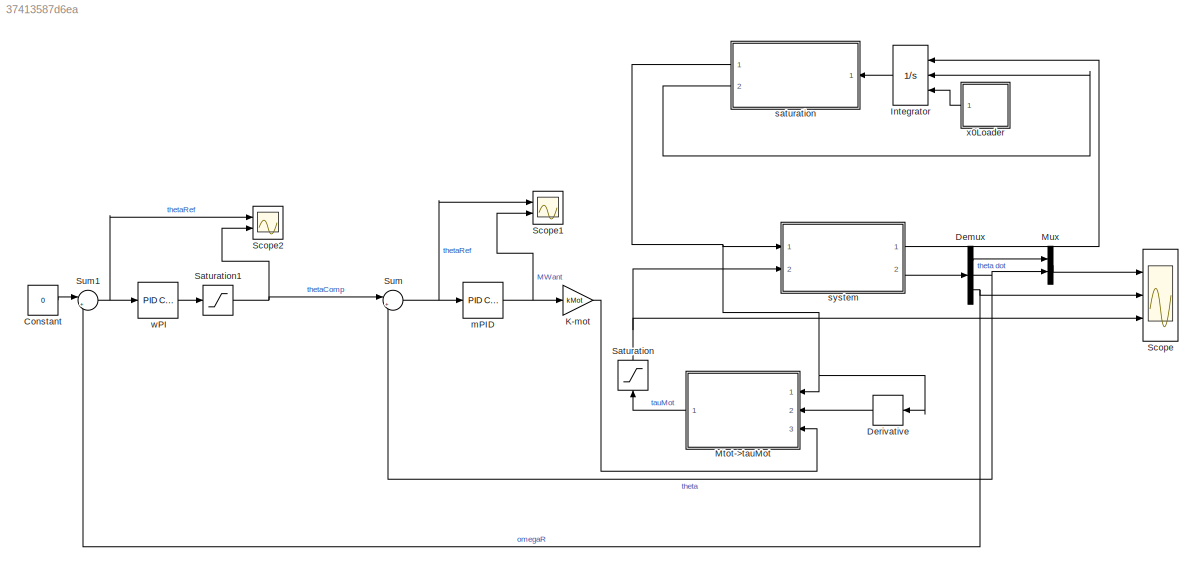
MODEL slx_37413587d6ea
KIND model
CONFIG AbsTol = auto
CONFIG EnableMultiTasking = off
CONFIG FixedStep = 0.0001
CONFIG InitFcn = simulationVar
CONFIG MaxStep = auto
CONFIG MinStep = auto
CONFIG RelTol = 1e-3
CONFIG SampleTimeConstraint = Unconstrained
CONFIG Solver = VariableStepAuto
CONFIG SolverName = VariableStepAuto
CONFIG StartTime = 0.0
CONFIG StopTime = 30
BLOCK [Constant] Constant
  Value = 0
BLOCK [Demux] Demux
  DisplayOption = bar
  Outputs = 3
  Ports = [1, 3]
BLOCK [Derivative] Derivative
  CoefficientInTFapproximation = 100
BLOCK [Integrator] Integrator
  ExternalReset = rising
  InitialCondition = [0,0.1,0]
  InitialConditionSource = external
  Ports = [3, 1]
BLOCK [Gain] K-mot
  Gain = kMot
  OutDataTypeStr = Inherit: Inherit via internal rule
  ParamDataTypeStr = Inherit: Inherit via internal rule
  SaturateOnIntegerOverflow = off
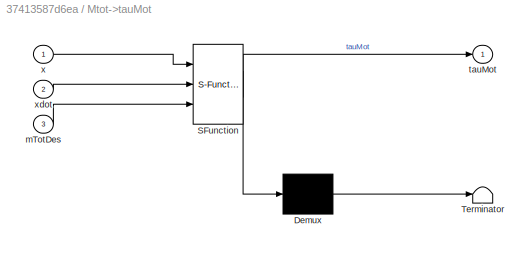
BLOCK [SubSystem] Mtot->tauMot
  ErrorFcn = Stateflow.Translate.translate
  PermitHierarchicalResolution = ExplicitOnly
  Ports = [3, 1]
  RequestExecContextInheritance = off
  SFBlockType = MATLAB Function
  TreatAsAtomicUnit = on
BLOCK [Demux] Mtot->tauMot/ Demux 
  Outputs = 1
  Ports = [1, 1]
BLOCK [S-Function] Mtot->tauMot/ SFunction 
  EnableBusSupport = on
  FunctionName = sf_sfun
  PortCounts = [3 2]
  Ports = [3, 2]
  SFcnIsStateOwnerBlock = off
  SFunctionDeploymentMode = off
  Tag = Stateflow S-Function invertedPendolum 4
BLOCK [Terminator] Mtot->tauMot/ Terminator 
BLOCK [Inport] Mtot->tauMot/mTotDes
  IconDisplay = Port number
  Port = 3
BLOCK [Outport] Mtot->tauMot/tauMot
  IconDisplay = Port number
BLOCK [Inport] Mtot->tauMot/x
  IconDisplay = Port number
BLOCK [Inport] Mtot->tauMot/xdot
  IconDisplay = Port number
  Port = 2
BLOCK [Mux] Mux
  DisplayOption = bar
  Inputs = 2
  Ports = [2, 1]
BLOCK [Saturate] Saturation
  InputPortMap = u0
  LowerLimit = -0.9*10^9
  Ports = [1, 1]
  UpperLimit = 0.9*10^9
BLOCK [Saturate] Saturation1
  InputPortMap = u0
  LowerLimit = -10
  Ports = [1, 1]
  UpperLimit = 10
BLOCK [Scope] Scope
  Floating = off
  NumInputPorts = 3
  Ports = [3]
  ScopeSpecificationString = Simulink.scopes.TimeScopeBlockCfg('CurrentConfiguration', extmgr.ConfigurationSet(extmgr.Configuration('Core','General UI',true),extmgr.Configuration('Core','Source UI',true),extmgr.Configuration('Sources','WiredSimulink',true),extmgr.Configuration('Visuals','Time Domain',true,'SerializedDisplays',{struct('MinYLimReal','-2.69468','MaxYLimReal','3.01507','YLabelReal','','MinYLimMag','0.00000','MaxY...<+2834ch>
BLOCK [Scope] Scope1
  Floating = off
  NumInputPorts = 2
  Ports = [2]
  ScopeSpecificationString = Simulink.scopes.TimeScopeBlockCfg('CurrentConfiguration', extmgr.ConfigurationSet(extmgr.Configuration('Core','General UI',true),extmgr.Configuration('Core','Source UI',true),extmgr.Configuration('Sources','WiredSimulink',true,'DataLoggingVariableName','ScopeData1'),extmgr.Configuration('Visuals','Time Domain',true,'SerializedDisplays',{struct('MinYLimReal','-0.94545','MaxYLimReal','1.08598','YLab...<+2033ch>
BLOCK [Scope] Scope2
  Floating = off
  NumInputPorts = 2
  Ports = [2]
  ScopeSpecificationString = Simulink.scopes.TimeScopeBlockCfg('CurrentConfiguration', extmgr.ConfigurationSet(extmgr.Configuration('Core','General UI',true),extmgr.Configuration('Core','Source UI',true),extmgr.Configuration('Sources','WiredSimulink',true,'DataLoggingVariableName','ScopeData1'),extmgr.Configuration('Visuals','Time Domain',true,'SerializedDisplays',{struct('MinYLimReal','-32.46196','MaxYLimReal','47.21681','YL...<+2019ch>
BLOCK [Sum] Sum
  IconShape = round
  InputSameDT = off
  Inputs = |+-
  OutDataTypeStr = Inherit: Inherit via internal rule
  Ports = [2, 1]
  SaturateOnIntegerOverflow = off
BLOCK [Sum] Sum1
  IconShape = round
  InputSameDT = off
  Inputs = |+-
  OutDataTypeStr = Inherit: Inherit via internal rule
  Ports = [2, 1]
  SaturateOnIntegerOverflow = off
BLOCK [Reference] mPID  REF=simulink/Continuous/PID Controller
  Ports = [1, 1]
  SourceBlock = simulink/Continuous/PID Controller
  SourceProductBaseCode = SL
  SourceProductName = Simulink
  SourceType = PID 1dof
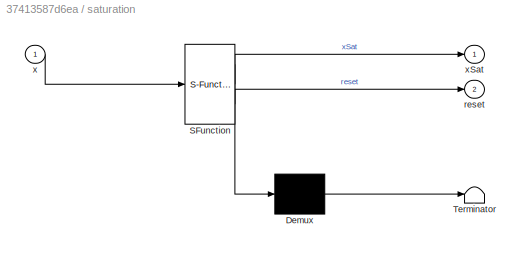
BLOCK [SubSystem] saturation
  ErrorFcn = Stateflow.Translate.translate
  PermitHierarchicalResolution = ExplicitOnly
  Ports = [1, 2]
  RequestExecContextInheritance = off
  SFBlockType = MATLAB Function
  TreatAsAtomicUnit = on
BLOCK [Demux] saturation/ Demux 
  Outputs = 1
  Ports = [1, 1]
BLOCK [S-Function] saturation/ SFunction 
  EnableBusSupport = on
  FunctionName = sf_sfun
  PortCounts = [1 3]
  Ports = [1, 3]
  SFcnIsStateOwnerBlock = off
  SFunctionDeploymentMode = off
  Tag = Stateflow S-Function invertedPendolum 2
BLOCK [Terminator] saturation/ Terminator 
BLOCK [Outport] saturation/reset
  IconDisplay = Port number
  Port = 2
BLOCK [Inport] saturation/x
  IconDisplay = Port number
BLOCK [Outport] saturation/xSat
  IconDisplay = Port number
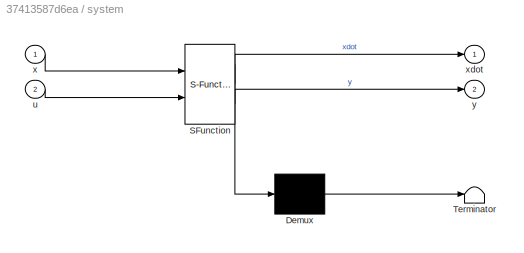
BLOCK [SubSystem] system
  ErrorFcn = Stateflow.Translate.translate
  PermitHierarchicalResolution = ExplicitOnly
  Ports = [2, 2]
  RequestExecContextInheritance = off
  SFBlockType = MATLAB Function
  TreatAsAtomicUnit = on
BLOCK [Demux] system/ Demux 
  Outputs = 1
  Ports = [1, 1]
BLOCK [S-Function] system/ SFunction 
  EnableBusSupport = on
  FunctionName = sf_sfun
  PortCounts = [2 3]
  Ports = [2, 3]
  SFcnIsStateOwnerBlock = off
  SFunctionDeploymentMode = off
  Tag = Stateflow S-Function invertedPendolum 1
BLOCK [Terminator] system/ Terminator 
BLOCK [Inport] system/u
  IconDisplay = Port number
  Port = 2
BLOCK [Inport] system/x
  IconDisplay = Port number
BLOCK [Outport] system/xdot
  IconDisplay = Port number
BLOCK [Outport] system/y
  IconDisplay = Port number
  Port = 2
BLOCK [Reference] wPI  REF=simulink/Continuous/PID Controller
  Ports = [1, 1]
  SourceBlock = simulink/Continuous/PID Controller
  SourceProductBaseCode = SL
  SourceProductName = Simulink
  SourceType = PID 1dof
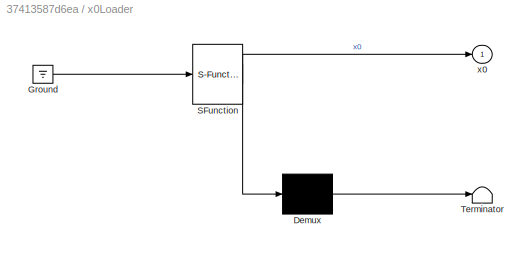
BLOCK [SubSystem] x0Loader
  ErrorFcn = Stateflow.Translate.translate
  PermitHierarchicalResolution = ExplicitOnly
  Ports = [0, 1]
  RequestExecContextInheritance = off
  SFBlockType = MATLAB Function
  TreatAsAtomicUnit = on
BLOCK [Demux] x0Loader/ Demux 
  Outputs = 1
  Ports = [1, 1]
BLOCK [Ground] x0Loader/ Ground 
BLOCK [S-Function] x0Loader/ SFunction 
  EnableBusSupport = on
  FunctionName = sf_sfun
  PortCounts = [1 2]
  Ports = [1, 2]
  SFcnIsStateOwnerBlock = off
  SFunctionDeploymentMode = off
  Tag = Stateflow S-Function invertedPendolum 3
BLOCK [Terminator] x0Loader/ Terminator 
BLOCK [Outport] x0Loader/x0
  IconDisplay = Port number
LINE Constant:1 -> Sum1:1
LINE Demux:1 -> Mux:1
NET Demux:2 -> Mux:2, Sum:2
NET Demux:3 -> Scope:2, Sum1:2
LINE Derivative:1 -> Mtot->tauMot:2
LINE Integrator:1 -> saturation:1
LINE K-mot:1 -> Mtot->tauMot:3
LINE Mtot->tauMot:1 -> Saturation:1
LINE Mux:1 -> Scope:1
NET Saturation1:1 -> Scope2:2, Sum:1
NET Saturation:1 -> Scope:3, system:2
NET Sum1:1 -> Scope2:1, wPI:1
NET Sum:1 -> Scope1:1, mPID:1
NET mPID:1 -> K-mot:1, Scope1:2
NET saturation:1 -> Derivative:1, Mtot->tauMot:1, system:1
LINE saturation:2 -> Integrator:2
LINE system:1 -> Integrator:1
LINE system:2 -> Demux:1
LINE wPI:1 -> Saturation1:1
LINE x0Loader:1 -> Integrator:3
note: NET lines group one-source signal fan-out (src -> all destinations, sorted); 1:1 wires keep LINE
CHART system states=1 transitions=1
  STATE_LABEL 'eML_blk_kernel()'
  STATE_LABEL "SCRIPT:\nfunction [xdot,y] = pendoloNotLinSys(x,u)\n%PENDOLONOTLINSYS Summary of this function goes here\n% x1:= theta dot    [rad/s]\n% x2:= theta        [rad]\n% x3:= omegaR       [rad/s]\n% u:= Coppia motore [g/s^2 * mm]\n\ncoder.extrinsic('evalin', 'assignin')\ng = 0;                  % Needed in order to set variable class correctly\ng = evalin('base','g'); % Read value from workspace\n\nmCm = 0;        ...<+1142ch>"
CHART saturation states=1 transitions=1
  STATE_LABEL 'eML_blk_kernel()'
  STATE_LABEL "SCRIPT:\nfunction [xSat,reset]  = phisicReaction(x)\n%PHISICREACTION Summary of this function goes here\n% Funzione che letto lo stato, in caso di urto con la base cambia\n% in maniera realistica lo stato introducendo una saturazione.\n% x1:= theta dot    [rad/s]\n% x2:= theta        [rad]\n% x3:= omegaR       [rad/s]\n\ncoder.extrinsic('evalin', 'assignin')\nthetaMax = 0;                  % Needed in order...<+504ch>"
CHART x0Loader states=1 transitions=1
  STATE_LABEL 'eML_blk_kernel()'
  STATE_LABEL "SCRIPT:\nfunction x0 = loadX0()\ncoder.extrinsic('evalin', 'assignin')\nx0 = zeros(3,1);          % Needed in order to set variable class correctly\nx0 = evalin('base','x0'); % Read value from workspace\n"
CHART Mtot->tauMot states=1 transitions=1
  STATE_LABEL 'eML_blk_kernel()'
  STATE_LABEL "SCRIPT:\nfunction tauMot = mTot2mMot(x,xdot, mTotDes)\n% x1:= theta dot    [rad/s]\n% x2:= theta        [rad]\n% x3:= omegaR       [rad/s]\n% tauMot:= Coppia motore [g/s^2 * mm]\n\n% x1dot:= theta 2 dot   [rad/s^21]\n% x2dot:= theta dot     [rad/s]\n% x3dot:= omegaR dot    [rad/s^2]\n\ncoder.extrinsic('evalin', 'assignin')\ng = 0;                  % Needed in order to set variable class correctly\ng = evalin('...<+553ch>"
